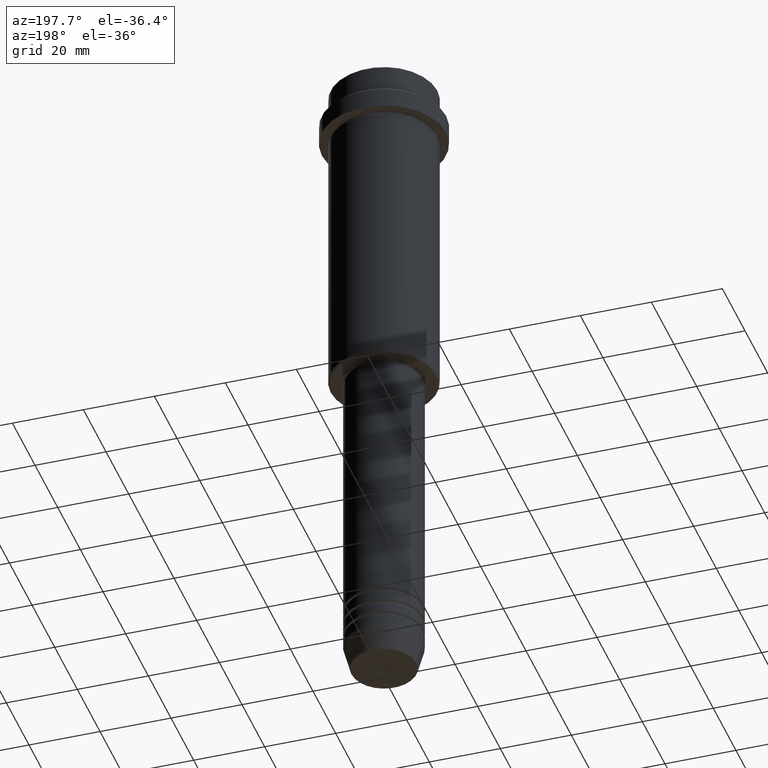
[diagram: clean part render]
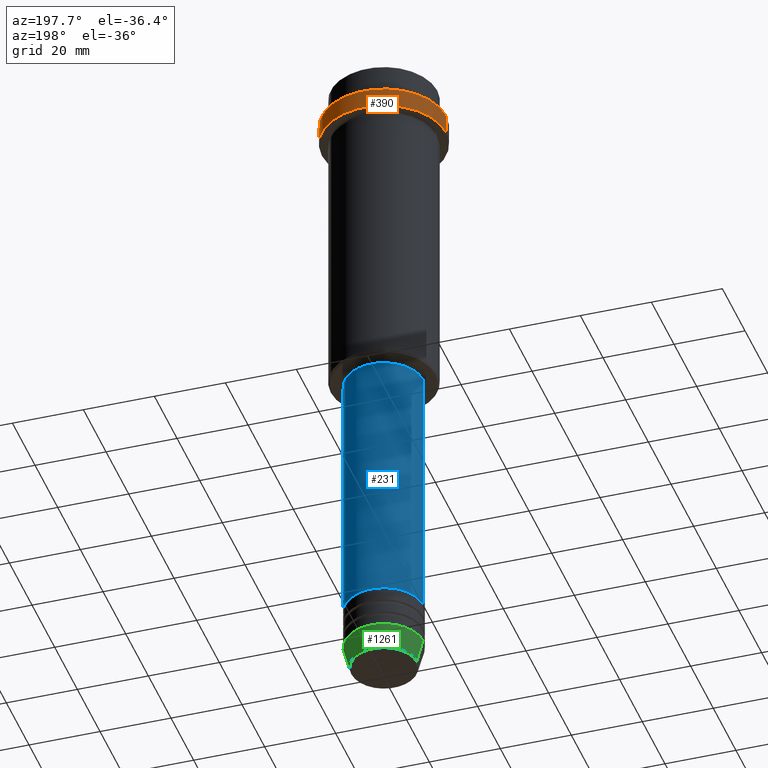
[diagram: same view with three faces highlighted in distinct colors, each labeled with its STEP entity id]
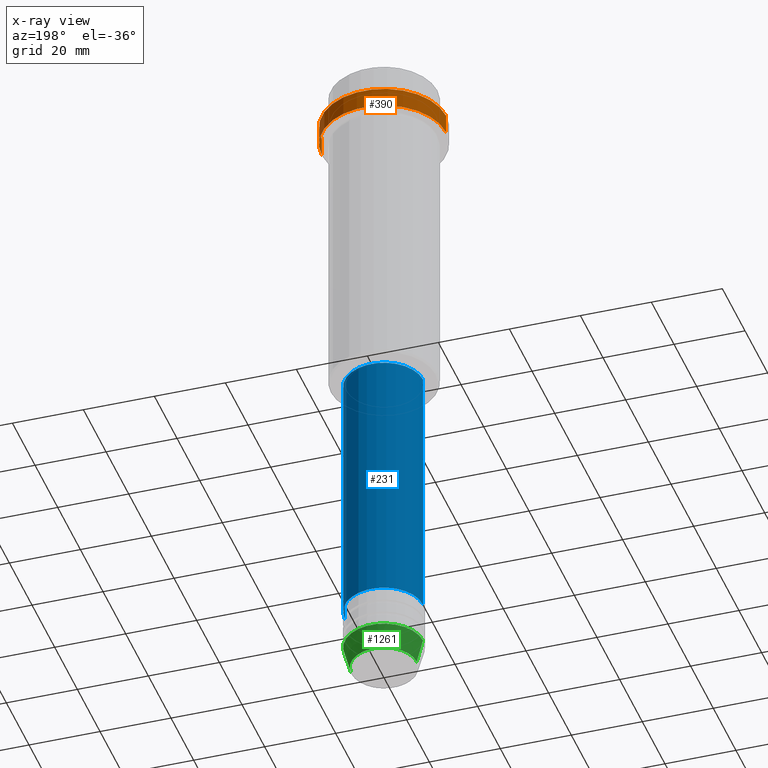
[diagram: x-ray of the same camera — body ghosted, the three highlighted faces saturated]
A machine part, auxiliary view with three faces highlighted in distinct colors.
The next image is the same camera in x-ray (body ghosted, the three faces saturated) — at least one of them is partly hidden behind the body in this view.
Their STEP definitions:

[orange] entity #390 — the highlighted cylindrical surface (partial cylindrical patch) has radius 17.5 mm, axis along (-0, -0, 1).
#30 = DIRECTION ( 'NONE',  ( 1.000000000000000000, 0.000000000000000000, 0.000000000000000000 ) ) ;
#44 = VERTEX_POINT ( 'NONE', #335 ) ;
#81 = ORIENTED_EDGE ( 'NONE', *, *, #238, .T. ) ;
#137 = CARTESIAN_POINT ( 'NONE',  ( 0.000000000000000000, 0.000000000000000000, -9.500000000000000000 ) ) ;
#143 = VECTOR ( 'NONE', #1043, 1000.000000000000000 ) ;
#153 = LINE ( 'NONE', #590, #143 ) ;
#202 = ORIENTED_EDGE ( 'NONE', *, *, #835, .T. ) ;
#211 = CARTESIAN_POINT ( 'NONE',  ( -17.50000000000000000, 2.143131898507868248E-15, 0.000000000000000000 ) ) ;
#238 = EDGE_CURVE ( 'NONE', #633, #44, #254, .T. ) ;
#246 = EDGE_CURVE ( 'NONE', #1269, #44, #153, .T. ) ;
#254 = CIRCLE ( 'NONE', #447, 17.50000000000000000 ) ;
#335 = CARTESIAN_POINT ( 'NONE',  ( 17.50000000000000000, 0.000000000000000000, -9.500000000000000000 ) ) ;
#377 = ORIENTED_EDGE ( 'NONE', *, *, #1242, .T. ) ;
#390 = ADVANCED_FACE ( 'NONE', ( #712 ), #602, .T. ) ;
#391 = VERTEX_POINT ( 'NONE', #729 ) ;
#419 = CARTESIAN_POINT ( 'NONE',  ( -17.50000000000000000, 2.143131898507868248E-15, -9.500000000000000000 ) ) ;
#442 = DIRECTION ( 'NONE',  ( -0.000000000000000000, -0.000000000000000000, 1.000000000000000000 ) ) ;
#447 = AXIS2_PLACEMENT_3D ( 'NONE', #137, #1026, #30 ) ;
#500 = CARTESIAN_POINT ( 'NONE',  ( 0.000000000000000000, 0.000000000000000000, 0.000000000000000000 ) ) ;
#504 = AXIS2_PLACEMENT_3D ( 'NONE', #968, #1196, #1097 ) ;
#590 = CARTESIAN_POINT ( 'NONE',  ( 17.50000000000000000, 0.000000000000000000, 0.000000000000000000 ) ) ;
#602 = CYLINDRICAL_SURFACE ( 'NONE', #1185, 17.50000000000000000 ) ;
#633 = VERTEX_POINT ( 'NONE', #419 ) ;
#641 = CIRCLE ( 'NONE', #504, 17.50000000000000000 ) ;
#655 = CARTESIAN_POINT ( 'NONE',  ( 17.50000000000000000, 0.000000000000000000, -15.00000000000000000 ) ) ;
#712 = FACE_OUTER_BOUND ( 'NONE', #1093, .T. ) ;
#729 = CARTESIAN_POINT ( 'NONE',  ( -17.50000000000000000, 2.143131898507868248E-15, -15.00000000000000000 ) ) ;
#820 = ORIENTED_EDGE ( 'NONE', *, *, #246, .F. ) ;
#835 = EDGE_CURVE ( 'NONE', #391, #633, #1296, .T. ) ;
#846 = VECTOR ( 'NONE', #442, 1000.000000000000000 ) ;
#968 = CARTESIAN_POINT ( 'NONE',  ( 0.000000000000000000, 0.000000000000000000, -15.00000000000000000 ) ) ;
#1026 = DIRECTION ( 'NONE',  ( 0.000000000000000000, 0.000000000000000000, -1.000000000000000000 ) ) ;
#1043 = DIRECTION ( 'NONE',  ( -0.000000000000000000, -0.000000000000000000, 1.000000000000000000 ) ) ;
#1093 = EDGE_LOOP ( 'NONE', ( #377, #202, #81, #820 ) ) ;
#1097 = DIRECTION ( 'NONE',  ( 1.000000000000000000, 0.000000000000000000, 0.000000000000000000 ) ) ;
#1151 = DIRECTION ( 'NONE',  ( 1.000000000000000000, 0.000000000000000000, 0.000000000000000000 ) ) ;
#1185 = AXIS2_PLACEMENT_3D ( 'NONE', #500, #1266, #1151 ) ;
#1196 = DIRECTION ( 'NONE',  ( -0.000000000000000000, -0.000000000000000000, 1.000000000000000000 ) ) ;
#1242 = EDGE_CURVE ( 'NONE', #1269, #391, #641, .T. ) ;
#1266 = DIRECTION ( 'NONE',  ( -0.000000000000000000, -0.000000000000000000, 1.000000000000000000 ) ) ;
#1269 = VERTEX_POINT ( 'NONE', #655 ) ;
#1296 = LINE ( 'NONE', #211, #846 ) ;

[blue] entity #231 — the highlighted cylindrical surface (partial cylindrical patch) has radius 11 mm, axis along (-0, -0, 1).
#36 = VERTEX_POINT ( 'NONE', #790 ) ;
#53 = CARTESIAN_POINT ( 'NONE',  ( -11.00000000000000000, 1.347111479062088405E-15, 0.000000000000000000 ) ) ;
#231 = ADVANCED_FACE ( 'NONE', ( #693 ), #381, .T. ) ;
#233 = DIRECTION ( 'NONE',  ( 1.000000000000000000, 0.000000000000000000, 0.000000000000000000 ) ) ;
#234 = ORIENTED_EDGE ( 'NONE', *, *, #897, .F. ) ;
#248 = DIRECTION ( 'NONE',  ( -0.000000000000000000, -0.000000000000000000, 1.000000000000000000 ) ) ;
#253 = DIRECTION ( 'NONE',  ( 1.000000000000000000, 0.000000000000000000, 0.000000000000000000 ) ) ;
#289 = EDGE_LOOP ( 'NONE', ( #1244, #639, #234, #921 ) ) ;
#378 = VERTEX_POINT ( 'NONE', #993 ) ;
#381 = CYLINDRICAL_SURFACE ( 'NONE', #1086, 11.00000000000000000 ) ;
#408 = EDGE_CURVE ( 'NONE', #36, #901, #1164, .T. ) ;
#428 = DIRECTION ( 'NONE',  ( -0.000000000000000000, -0.000000000000000000, 1.000000000000000000 ) ) ;
#463 = DIRECTION ( 'NONE',  ( -0.000000000000000000, -0.000000000000000000, 1.000000000000000000 ) ) ;
#569 = LINE ( 'NONE', #1013, #826 ) ;
#639 = ORIENTED_EDGE ( 'NONE', *, *, #408, .T. ) ;
#692 = CARTESIAN_POINT ( 'NONE',  ( 0.000000000000000000, 0.000000000000000000, -170.9999999999998863 ) ) ;
#693 = FACE_OUTER_BOUND ( 'NONE', #289, .T. ) ;
#742 = AXIS2_PLACEMENT_3D ( 'NONE', #692, #248, #1334 ) ;
#790 = CARTESIAN_POINT ( 'NONE',  ( -11.00000000000000000, 1.347111479062088405E-15, -170.9999999999998863 ) ) ;
#794 = CARTESIAN_POINT ( 'NONE',  ( 10.99999999999999822, 0.000000000000000000, -96.00000000000000000 ) ) ;
#826 = VECTOR ( 'NONE', #1339, 1000.000000000000000 ) ;
#897 = EDGE_CURVE ( 'NONE', #961, #901, #1281, .T. ) ;
#901 = VERTEX_POINT ( 'NONE', #1217 ) ;
#907 = EDGE_CURVE ( 'NONE', #378, #961, #569, .T. ) ;
#912 = VECTOR ( 'NONE', #931, 1000.000000000000000 ) ;
#921 = ORIENTED_EDGE ( 'NONE', *, *, #907, .F. ) ;
#931 = DIRECTION ( 'NONE',  ( -0.000000000000000000, -0.000000000000000000, 1.000000000000000000 ) ) ;
#961 = VERTEX_POINT ( 'NONE', #794 ) ;
#993 = CARTESIAN_POINT ( 'NONE',  ( 11.00000000000000000, 0.000000000000000000, -170.9999999999998863 ) ) ;
#1013 = CARTESIAN_POINT ( 'NONE',  ( 11.00000000000000000, 0.000000000000000000, 0.000000000000000000 ) ) ;
#1086 = AXIS2_PLACEMENT_3D ( 'NONE', #1246, #463, #253 ) ;
#1164 = LINE ( 'NONE', #53, #912 ) ;
#1212 = CIRCLE ( 'NONE', #742, 11.00000000000000000 ) ;
#1217 = CARTESIAN_POINT ( 'NONE',  ( -10.99999999999999822, 1.347111479062088207E-15, -96.00000000000000000 ) ) ;
#1230 = AXIS2_PLACEMENT_3D ( 'NONE', #1401, #428, #233 ) ;
#1244 = ORIENTED_EDGE ( 'NONE', *, *, #1347, .T. ) ;
#1246 = CARTESIAN_POINT ( 'NONE',  ( 0.000000000000000000, 0.000000000000000000, 0.000000000000000000 ) ) ;
#1281 = CIRCLE ( 'NONE', #1230, 10.99999999999999822 ) ;
#1334 = DIRECTION ( 'NONE',  ( 1.000000000000000000, 0.000000000000000000, 0.000000000000000000 ) ) ;
#1339 = DIRECTION ( 'NONE',  ( -0.000000000000000000, -0.000000000000000000, 1.000000000000000000 ) ) ;
#1347 = EDGE_CURVE ( 'NONE', #378, #36, #1212, .T. ) ;
#1401 = CARTESIAN_POINT ( 'NONE',  ( 0.000000000000000000, 0.000000000000000000, -96.00000000000000000 ) ) ;

[green] entity #1261 — the highlighted conical surface has half-angle 15 deg.
#16 = DIRECTION ( 'NONE',  ( -0.000000000000000000, -0.000000000000000000, 1.000000000000000000 ) ) ;
#18 = CARTESIAN_POINT ( 'NONE',  ( 0.000000000000000000, 0.000000000000000000, -183.0000000000000000 ) ) ;
#20 = DIRECTION ( 'NONE',  ( 1.000000000000000000, 0.000000000000000000, 0.000000000000000000 ) ) ;
#68 = DIRECTION ( 'NONE',  ( 0.2588190451025213501, 0.000000000000000000, 0.9659258262890680902 ) ) ;
#117 = DIRECTION ( 'NONE',  ( -0.2588190451025213501, 3.169619151431772337E-17, 0.9659258262890680902 ) ) ;
#126 = EDGE_CURVE ( 'NONE', #576, #738, #668, .T. ) ;
#188 = ORIENTED_EDGE ( 'NONE', *, *, #503, .F. ) ;
#256 = AXIS2_PLACEMENT_3D ( 'NONE', #750, #632, #1084 ) ;
#293 = CARTESIAN_POINT ( 'NONE',  ( -11.00000000000000000, 1.347111479062088405E-15, -183.0000000000000000 ) ) ;
#310 = VERTEX_POINT ( 'NONE', #1001 ) ;
#370 = EDGE_LOOP ( 'NONE', ( #771, #979, #1061, #188 ) ) ;
#478 = EDGE_CURVE ( 'NONE', #310, #576, #889, .T. ) ;
#503 = EDGE_CURVE ( 'NONE', #310, #887, #1161, .T. ) ;
#562 = VECTOR ( 'NONE', #68, 1000.000000000000000 ) ;
#570 = EDGE_CURVE ( 'NONE', #887, #738, #1143, .T. ) ;
#576 = VERTEX_POINT ( 'NONE', #1018 ) ;
#608 = CARTESIAN_POINT ( 'NONE',  ( 11.00000000000000000, 0.000000000000000000, -183.0000000000000000 ) ) ;
#632 = DIRECTION ( 'NONE',  ( -0.000000000000000000, -0.000000000000000000, 1.000000000000000000 ) ) ;
#668 = LINE ( 'NONE', #1113, #780 ) ;
#738 = VERTEX_POINT ( 'NONE', #293 ) ;
#750 = CARTESIAN_POINT ( 'NONE',  ( 0.000000000000000000, 0.000000000000000000, -189.6294095225512422 ) ) ;
#759 = DIRECTION ( 'NONE',  ( 1.000000000000000000, 0.000000000000000000, 0.000000000000000000 ) ) ;
#771 = ORIENTED_EDGE ( 'NONE', *, *, #478, .T. ) ;
#780 = VECTOR ( 'NONE', #117, 1000.000000000000000 ) ;
#887 = VERTEX_POINT ( 'NONE', #978 ) ;
#889 = CIRCLE ( 'NONE', #256, 9.223655072137189492 ) ;
#977 = FACE_OUTER_BOUND ( 'NONE', #370, .T. ) ;
#978 = CARTESIAN_POINT ( 'NONE',  ( 11.00000000000000000, 0.000000000000000000, -183.0000000000000000 ) ) ;
#979 = ORIENTED_EDGE ( 'NONE', *, *, #126, .T. ) ;
#1001 = CARTESIAN_POINT ( 'NONE',  ( 9.223655072137189492, 0.000000000000000000, -189.6294095225512422 ) ) ;
#1018 = CARTESIAN_POINT ( 'NONE',  ( -9.223655072137189492, 1.238341722557647202E-15, -189.6294095225512422 ) ) ;
#1061 = ORIENTED_EDGE ( 'NONE', *, *, #570, .F. ) ;
#1084 = DIRECTION ( 'NONE',  ( 1.000000000000000000, 0.000000000000000000, 0.000000000000000000 ) ) ;
#1094 = DIRECTION ( 'NONE',  ( -0.000000000000000000, -0.000000000000000000, 1.000000000000000000 ) ) ;
#1113 = CARTESIAN_POINT ( 'NONE',  ( -11.00000000000000000, 1.347111479062088405E-15, -183.0000000000000000 ) ) ;
#1143 = CIRCLE ( 'NONE', #1322, 11.00000000000000000 ) ;
#1161 = LINE ( 'NONE', #608, #562 ) ;
#1171 = AXIS2_PLACEMENT_3D ( 'NONE', #1310, #1094, #759 ) ;
#1261 = ADVANCED_FACE ( 'NONE', ( #977 ), #1306, .T. ) ;
#1306 = CONICAL_SURFACE ( 'NONE', #1171, 11.00000000000000000, 0.2617993877991500740 ) ;
#1310 = CARTESIAN_POINT ( 'NONE',  ( 0.000000000000000000, 0.000000000000000000, -183.0000000000000000 ) ) ;
#1322 = AXIS2_PLACEMENT_3D ( 'NONE', #18, #16, #20 ) ;